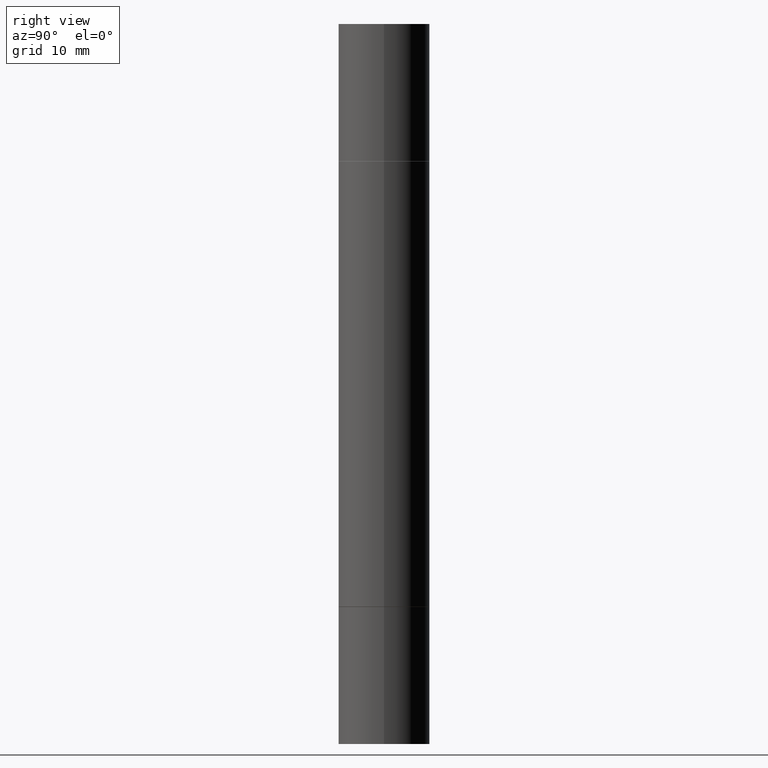
[diagram: clean part render]
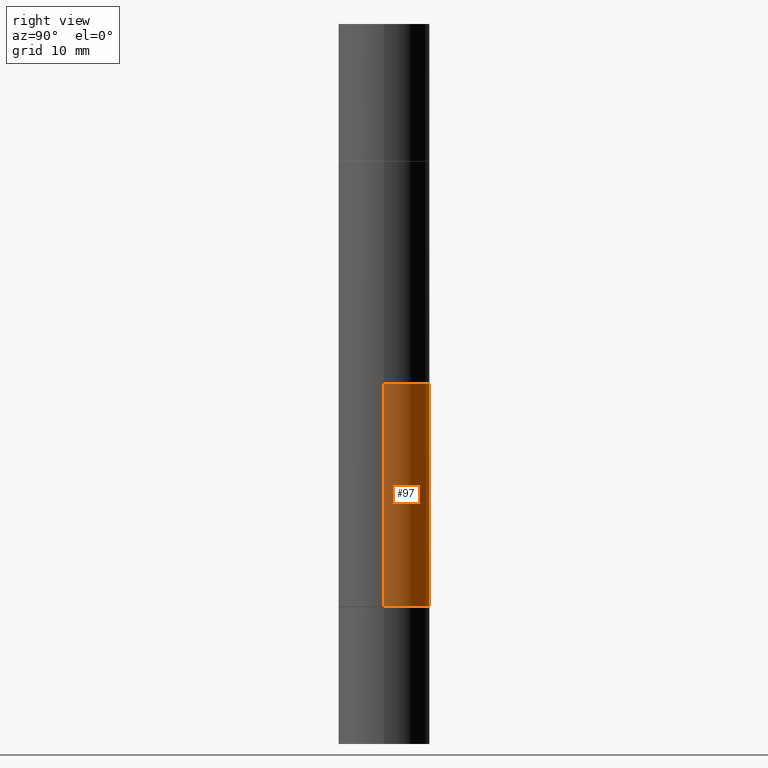
[diagram: same view with one face highlighted and labeled with its STEP entity id]
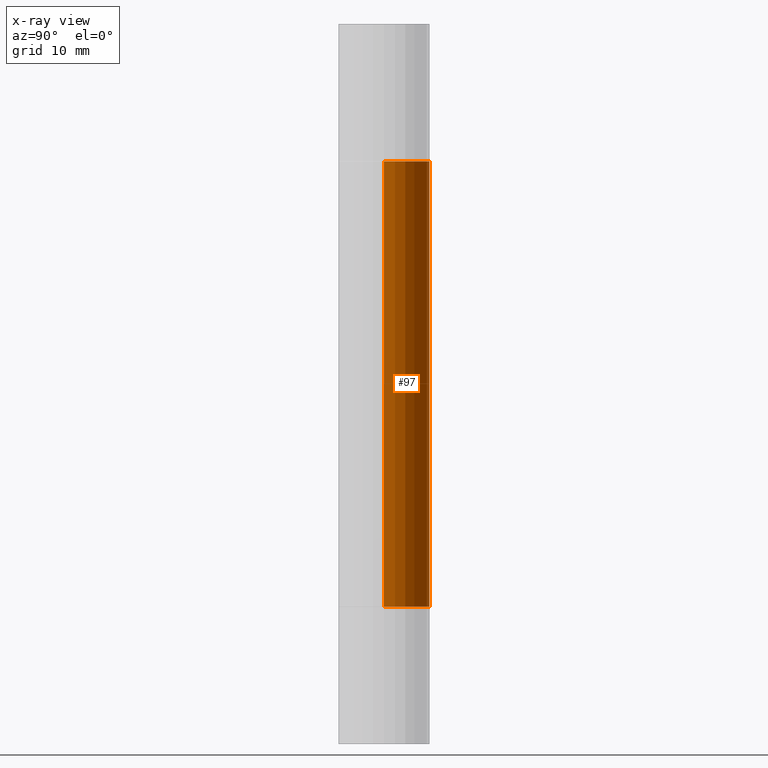
[diagram: x-ray of the same camera — body ghosted, the highlighted face saturated]
A machine part, right view. The second image highlights one B-rep face of the part: STEP entity #97.
The next image is the same camera in x-ray: the body ghosted, the highlighted face saturated — about 0% of this face is hidden behind the body in this view.
In plain terms, the highlighted cylindrical surface (partial cylindrical patch) has radius 4.0005 mm, axis along (-0, -0, -1).
Its self-contained STEP definition (entity closure, byte-faithful):
#19 = EDGE_CURVE ( 'NONE', #199, #499, #577, .T. ) ;
#28 = ORIENTED_EDGE ( 'NONE', *, *, #328, .F. ) ;
#40 = LINE ( 'NONE', #668, #99 ) ;
#63 = ORIENTED_EDGE ( 'NONE', *, *, #170, .T. ) ;
#90 = EDGE_LOOP ( 'NONE', ( #28, #574, #63, #270 ) ) ;
#97 = ADVANCED_FACE ( 'NONE', ( #112 ), #537, .T. ) ;
#99 = VECTOR ( 'NONE', #497, 39.37007874015748143 ) ;
#106 = AXIS2_PLACEMENT_3D ( 'NONE', #117, #489, #543 ) ;
#112 = FACE_OUTER_BOUND ( 'NONE', #90, .T. ) ;
#117 = CARTESIAN_POINT ( 'NONE',  ( 4.907811347132950827E-29, -1.651786859309018332E-15, -0.4733999999999996544 ) ) ;
#140 = VECTOR ( 'NONE', #348, 39.37007874015748143 ) ;
#170 = EDGE_CURVE ( 'NONE', #199, #552, #563, .T. ) ;
#190 = DIRECTION ( 'NONE',  ( 1.000000000000000000, -6.982962677686261189E-15, 0.000000000000000000 ) ) ;
#199 = VERTEX_POINT ( 'NONE', #502 ) ;
#270 = ORIENTED_EDGE ( 'NONE', *, *, #395, .T. ) ;
#297 = CIRCLE ( 'NONE', #672, 0.1575000000000000011 ) ;
#312 = CARTESIAN_POINT ( 'NONE',  ( -0.1575000000000000011, -5.712584246600035385E-16, -0.4733999999999996544 ) ) ;
#328 = EDGE_CURVE ( 'NONE', #499, #441, #40, .T. ) ;
#329 = DIRECTION ( 'NONE',  ( -2.445468806185136597E-29, 3.491481338843145583E-15, 1.000000000000000000 ) ) ;
#346 = CARTESIAN_POINT ( 'NONE',  ( 4.907811347132950827E-29, -7.007053898924308703E-15, -2.006899999999999906 ) ) ;
#348 = DIRECTION ( 'NONE',  ( -2.445468806185136877E-29, -3.492890411551753071E-15, -1.000000000000000000 ) ) ;
#374 = AXIS2_PLACEMENT_3D ( 'NONE', #679, #453, #190 ) ;
#392 = CARTESIAN_POINT ( 'NONE',  ( 0.1574999999999998901, -9.761485247987817829E-15, -2.480299999999999727 ) ) ;
#395 = EDGE_CURVE ( 'NONE', #552, #441, #297, .T. ) ;
#441 = VERTEX_POINT ( 'NONE', #500 ) ;
#453 = DIRECTION ( 'NONE',  ( -2.445468806185136597E-29, -3.492890411551752677E-15, -1.000000000000000000 ) ) ;
#489 = DIRECTION ( 'NONE',  ( 2.445468806185136597E-29, 3.492890411551752677E-15, 1.000000000000000000 ) ) ;
#496 = DIRECTION ( 'NONE',  ( 1.000000000000000000, -6.982962677686268288E-15, 0.000000000000000000 ) ) ;
#497 = DIRECTION ( 'NONE',  ( -2.445468806185136877E-29, -3.492890411551753071E-15, -1.000000000000000000 ) ) ;
#499 = VERTEX_POINT ( 'NONE', #312 ) ;
#500 = CARTESIAN_POINT ( 'NONE',  ( -0.1575000000000000011, -3.249432147717308339E-15, -2.006899999999999906 ) ) ;
#501 = CARTESIAN_POINT ( 'NONE',  ( 0.1575000000000000011, -8.106870520659896184E-15, -2.006899999999999906 ) ) ;
#502 = CARTESIAN_POINT ( 'NONE',  ( 0.1575000000000000011, -2.751603481044606995E-15, -0.4733999999999996544 ) ) ;
#537 = CYLINDRICAL_SURFACE ( 'NONE', #374, 0.1574999999999998901 ) ;
#543 = DIRECTION ( 'NONE',  ( 1.000000000000000000, -6.982962677686268288E-15, 0.000000000000000000 ) ) ;
#552 = VERTEX_POINT ( 'NONE', #501 ) ;
#563 = LINE ( 'NONE', #392, #140 ) ;
#574 = ORIENTED_EDGE ( 'NONE', *, *, #19, .F. ) ;
#577 = CIRCLE ( 'NONE', #106, 0.1575000000000000011 ) ;
#668 = CARTESIAN_POINT ( 'NONE',  ( -0.1574999999999998901, -7.581140191603216936E-15, -2.480299999999999727 ) ) ;
#672 = AXIS2_PLACEMENT_3D ( 'NONE', #346, #329, #496 ) ;
#679 = CARTESIAN_POINT ( 'NONE',  ( 0.000000000000000000, -8.661668626252231138E-15, -2.480299999999999727 ) ) ;